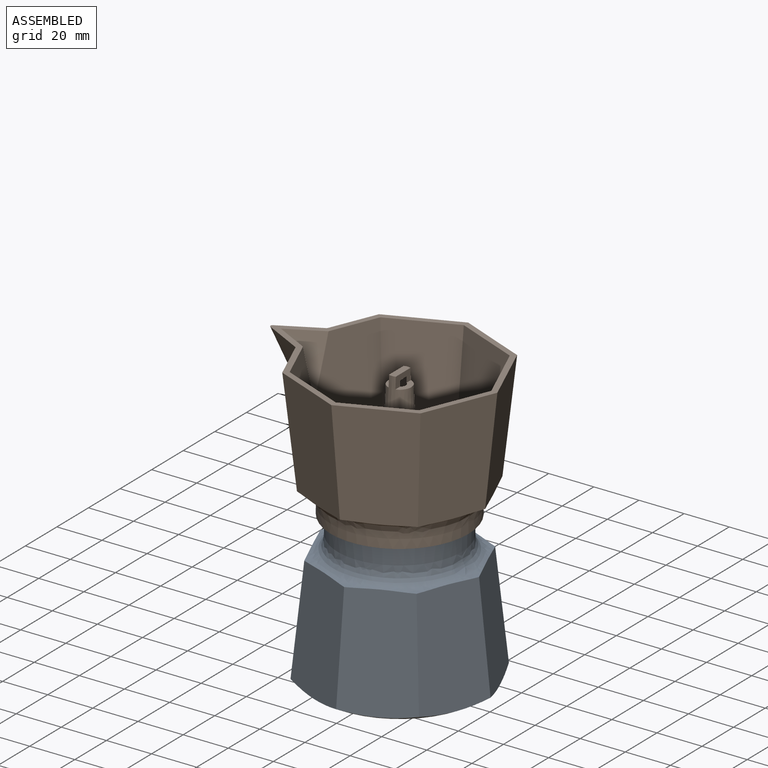
[diagram: assembled view]
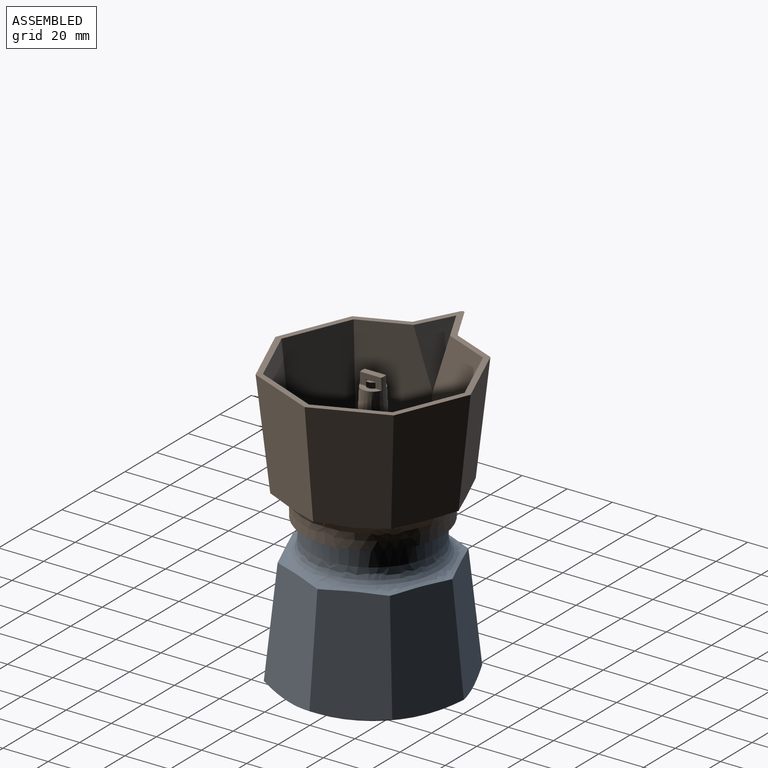
[diagram: assembled view, second angle]
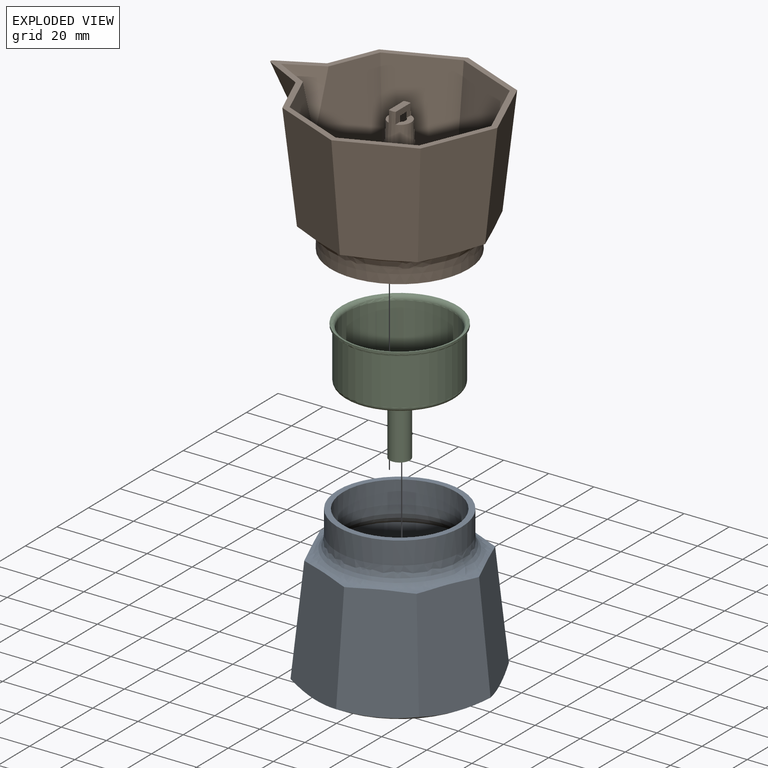
[diagram: exploded view]
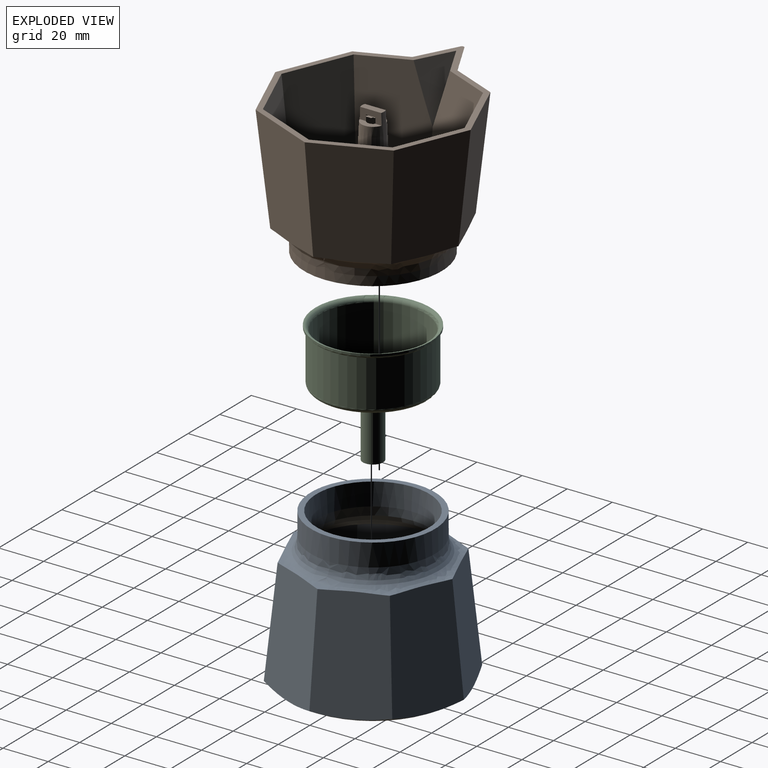
[diagram: exploded view, second angle]
ASSEMBLY  parts=3 mates=2
PART A: 25 faces, bbox 85.5x85.5x73 mm
  f0: plane 48.99x28.47mm, normal (-0.92,0.38,0.1), area 1402mm2, adj f1,f7,f10,f12
  f1: plane 48.99x28.47mm, normal (-0.92,-0.38,0.1), area 1402mm2, adj f0,f2,f10,f12
  f2: plane 48.99x28.47mm, normal (-0.38,-0.92,0.1), area 1402mm2, adj f1,f3,f10,f12
  f3: plane 48.99x28.47mm, normal (0.38,-0.92,0.1), area 1402mm2, adj f2,f4,f10,f12
  f4: plane 50.56x30.05mm, normal (0.92,-0.38,0.1), area 1402mm2, adj f3,f5,f10,f12
  f5: plane 48.99x28.47mm, normal (0.92,0.38,0.1), area 1402mm2, adj f4,f6,f10,f12
  f6: plane 48.99x28.47mm, normal (0.38,0.92,0.1), area 1402mm2, adj f5,f7,f10,f12
  f7: plane 48.99x28.47mm, normal (-0.38,0.92,0.1), area 1402mm2, adj f0,f6,f10,f12
  f8: cylinder r=27.5mm len=55mm, axis (0,0,-1), area 1727.9mm2, adj f9,f12
  f9: plane 55x55mm, normal (0,0,1), area 412.3mm2, adj f8,f21
  f10: cone r=35mm half-angle=60.3deg, axis (0,0,1), area 879.5mm2, adj f0,f1,f2,f3,f4,f5,f6,f7
  f11: plane 70x70mm, normal (0,0,-1), area 3848.5mm2, adj f10
  f12: bspline ~72.85x72.85mm, area 2018.2mm2, adj f0,f1,f2,f3,f4,f5,f6,f7
  f13: plane 45.84x26.45mm, normal (0.92,-0.38,-0.1), area 1213.7mm2, adj f14,f20,f22,f24
  f14: plane 45.84x26.45mm, normal (0.92,0.38,-0.1), area 1213.7mm2, adj f13,f15,f22,f24
  f15: plane 45.84x26.45mm, normal (0.38,0.92,-0.1), area 1213.7mm2, adj f14,f16,f22,f24
  f16: plane 45.84x26.45mm, normal (-0.38,0.92,-0.1), area 1213.7mm2, adj f15,f17,f22,f24
  f17: plane 47.23x27.85mm, normal (-0.92,0.38,-0.1), area 1213.7mm2, adj f16,f18,f22,f24
  f18: plane 45.84x26.45mm, normal (-0.92,-0.38,-0.1), area 1213.7mm2, adj f17,f19,f22,f24
  f19: plane 45.84x26.45mm, normal (-0.38,-0.92,-0.1), area 1213.7mm2, adj f18,f20,f22,f24
  f20: plane 45.84x26.45mm, normal (0.38,-0.92,-0.1), area 1213.7mm2, adj f13,f19,f22,f24
  f21: cylinder r=25mm len=50mm, axis (0,0,-1), area 1570.8mm2, adj f9,f24
  f22: cone r=33.76mm half-angle=60.3deg, axis (0,0,1), area 319.4mm2, adj f13,f14,f15,f16,f17,f18,f19,f20
  f23: plane 68.68x68.68mm, normal (0,0,1), area 3704.2mm2, adj f22
  f24: offset ~77.85x77.85mm, area 2090.7mm2, adj f13,f14,f15,f16,f17,f18,f19,f20
PART B: 47 faces, bbox 545.3x435.6x386.6 mm
  f0: plane 9.79x3mm, normal (0,0,1), area 28.9mm2, adj f1,f40,f42
  f1: cone r=6.81mm half-angle=2.5deg, axis (0,0,-1), area 1391.4mm2, adj f0,f40,f41,f42,f43,f46
  f2: plane 5x3mm, normal (0,0,-1), area 14mm2, adj f3,f40,f42
  f3: cone r=2.5mm half-angle=2.5deg, axis (0,0,-1), area 803.7mm2, adj f2,f40,f41,f42,f43,f45
  f4: offset ~221.05x109.47mm, area 558.7mm2, adj f20,f21,f22,f23,f24,f25,f26,f27
  f5: cylinder r=30.5mm len=61mm, axis (0,0,-1), area 766.5mm2, adj f6,f18
  f6: plane 61x61mm, normal (0,0,-1), area 459.5mm2, adj f5,f19
  f7: plane 101.1x87.17mm, normal (0,0,1), area 696.7mm2, adj f8,f9,f10,f11,f12,f13,f14,f15
  f8: plane 48.5x30.37mm, normal (-0.92,-0.38,-0.1), area 1320mm2, adj f7,f9,f18,f31,f34,f36
  f9: plane 48.49x30.62mm, normal (-0.38,-0.92,-0.1), area 1506.8mm2, adj f7,f8,f10,f18
  f10: plane 48.49x30.62mm, normal (0.38,-0.92,-0.1), area 1506.8mm2, adj f7,f9,f11,f18
  f11: plane 48.49x30.62mm, normal (0.92,-0.38,-0.1), area 1506.7mm2, adj f7,f10,f12,f18
  f12: plane 48.49x30.62mm, normal (0.92,0.38,-0.1), area 1506.8mm2, adj f7,f11,f13,f18
  f13: plane 48.49x30.62mm, normal (0.38,0.92,-0.1), area 1506.8mm2, adj f7,f12,f14,f18
  f14: plane 48.49x30.62mm, normal (-0.38,0.92,-0.1), area 1506.8mm2, adj f7,f13,f15,f18
  f15: plane 48.5x30.37mm, normal (-0.92,0.38,-0.1), area 1320.1mm2, adj f7,f14,f18,f31,f33,f35
  f16: bspline ~30x28.38mm, area 235.9mm2, adj f7,f32,f34
  f17: bspline ~30x28.38mm, area 235.9mm2, adj f7,f32,f33
  f18: bspline ~79x79mm, area 2106.8mm2, adj f5,f8,f9,f10,f11,f12,f13,f14
  f19: cylinder r=28mm len=56mm, axis (0,0,-1), area 703.7mm2, adj f6,f30
  f20: plane 368.65x350.53mm, normal (0.92,0.38,0.1), area 1243.6mm2, adj f4,f7,f21,f27,f28
  f21: plane 163.08x144.95mm, normal (0.38,0.92,0.1), area 1355.2mm2, adj f4,f7,f20,f22
  f22: plane 74.18x56.06mm, normal (-0.38,0.92,0.1), area 1355.2mm2, adj f4,f7,f21,f23
  f23: plane 49.31x31.18mm, normal (-0.92,0.38,0.1), area 1355.2mm2, adj f4,f7,f22,f24
  f24: plane 46.82x28.69mm, normal (-0.92,-0.38,0.1), area 1355.2mm2, adj f4,f7,f23,f25
  f25: plane 46.82x28.69mm, normal (-0.38,-0.92,0.1), area 1355.2mm2, adj f4,f7,f24,f26
  f26: plane 46.82x28.69mm, normal (0.38,-0.92,0.1), area 1355.2mm2, adj f4,f7,f25,f27
  f27: plane 49.98x31.86mm, normal (0.92,-0.38,0.1), area 1243.6mm2, adj f4,f7,f20,f26,f29
  f28: offset ~35x33.75mm, area 195.5mm2, adj f7,f20,f29
  f29: offset ~35x33.75mm, area 195.5mm2, adj f7,f27,f28
  f30: offset ~79.08x79.08mm, area 927mm2, adj f19,f44
  f31: cylinder r=1mm len=19.55mm, axis (-0.11,0,0.99), area 15.4mm2, adj f8,f15,f18,f37
  f32: bspline ~32.68x20.62mm, area 65.2mm2, adj f7,f16,f17,f35,f36,f37
  f33: bspline ~35.7x12.24mm, area 19.9mm2, adj f7,f15,f17,f35
  f34: bspline ~35.71x12.24mm, area 19.9mm2, adj f7,f8,f16,f36
  f35: bspline ~1.62x1.11mm, area 0.6mm2, adj f15,f32,f33,f37
  f36: bspline ~1.62x1.24mm, area 0.6mm2, adj f8,f32,f34,f37
  f37: bspline ~1.01x0.43mm, area 0.3mm2, adj f31,f32,f35,f36
  f38: plane 366.72x366.72mm, normal (0,0,1), area 3010.6mm2, adj f4,f46
  f39: plane 56.02x56.01mm, normal (0,0,-1), area 2196.5mm2, adj f44,f45
  f40: plane 9.78x5mm, normal (-1,0,0), area 37.4mm2, adj f0,f1,f2,f3,f41
  f41: plane 9.77x3.61mm, normal (0,0,1), area 22.6mm2, adj f1,f3,f40
  f42: plane 9.78x5mm, normal (1,0,0), area 37.4mm2, adj f0,f1,f2,f3,f43
  f43: plane 9.77x3.61mm, normal (0,0,1), area 22.6mm2, adj f1,f3,f42
  f44: bspline ~59.1x59.1mm, area 358.7mm2, adj f30,f39
  f45: torus R=9.21mm, axis (0,0,-1), area 291.5mm2, adj f3,f39
  f46: torus R=9.21mm, axis (0,0,-1), area 183.3mm2, adj f1,f38
PART C: 14 faces, bbox 58.3x58.3x54 mm
  f0: cylinder r=25.5mm len=51mm, axis (0,0,-1), area 160.2mm2, adj f5,f11
  f1: plane 9x9mm, normal (0,0,-1), area 25.1mm2, adj f4,f10
  f2: cylinder r=23.5mm len=47mm, axis (0,0,-1), area 3048.5mm2, adj f5,f6
  f3: cone r=24.13mm half-angle=68.2deg, axis (0,0,1), area 1671.8mm2, adj f6,f7
  f4: cylinder r=3.5mm len=20.65mm, axis (0,0,-1), area 454mm2, adj f1,f7
  f5: torus R=25.5mm, axis (0,0,-1), area 478.2mm2, adj f0,f2
  f6: torus R=22.5mm, axis (0,0,-1), area 174.1mm2, adj f2,f3
  f7: torus R=6.5mm, axis (0,0,1), area 93.3mm2, adj f3,f4
  f8: cylinder r=24.5mm len=49mm, axis (0,0,-1), area 3178.2mm2, adj f11,f12
  f9: cone r=24.5mm half-angle=68.2deg, axis (0,0,1), area 1715.8mm2, adj f12,f13
  f10: cylinder r=4.5mm len=20.65mm, axis (0,0,-1), area 583.8mm2, adj f1,f13
  f11: torus R=25.5mm, axis (0,0,-1), area 245.4mm2, adj f0,f8
  f12: torus R=22.5mm, axis (0,0,-1), area 359.9mm2, adj f8,f9
  f13: torus R=6.5mm, axis (0,0,1), area 73.9mm2, adj f9,f10
PLACE A t=(0,0,-33.16)mm fixed
PLACE B t=(0,0,32.84)mm
PLACE C t=(0,0,-33.03)mm
MATE fastened C.f9 <-> A.f8  axis (0,0,-1) through (0,0,23.84)mm
MATE slider B.f5 <-> A.f8  axis (0,0,-1) through (0,0,34.84)mm
